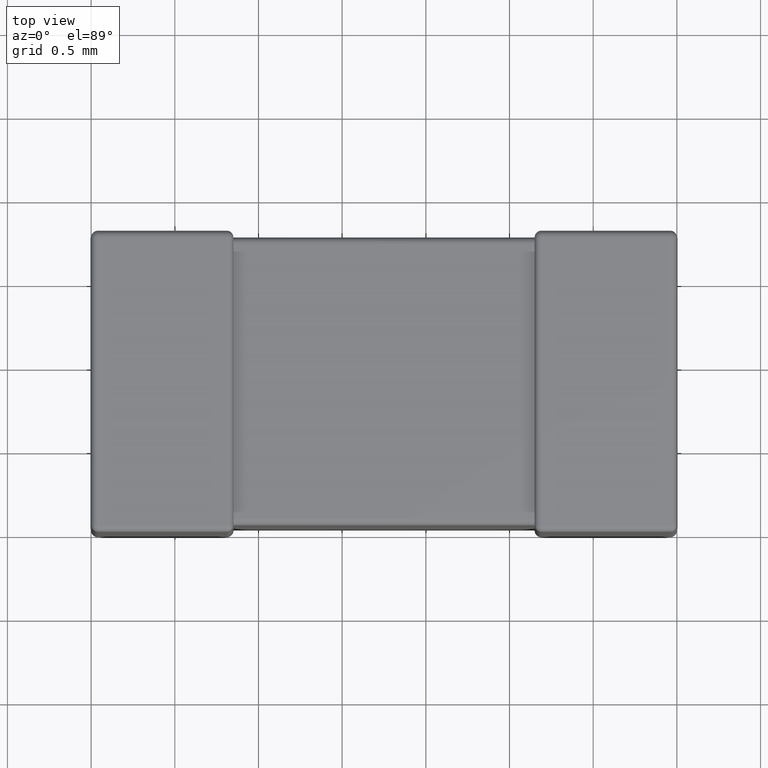
[diagram: clean part render]
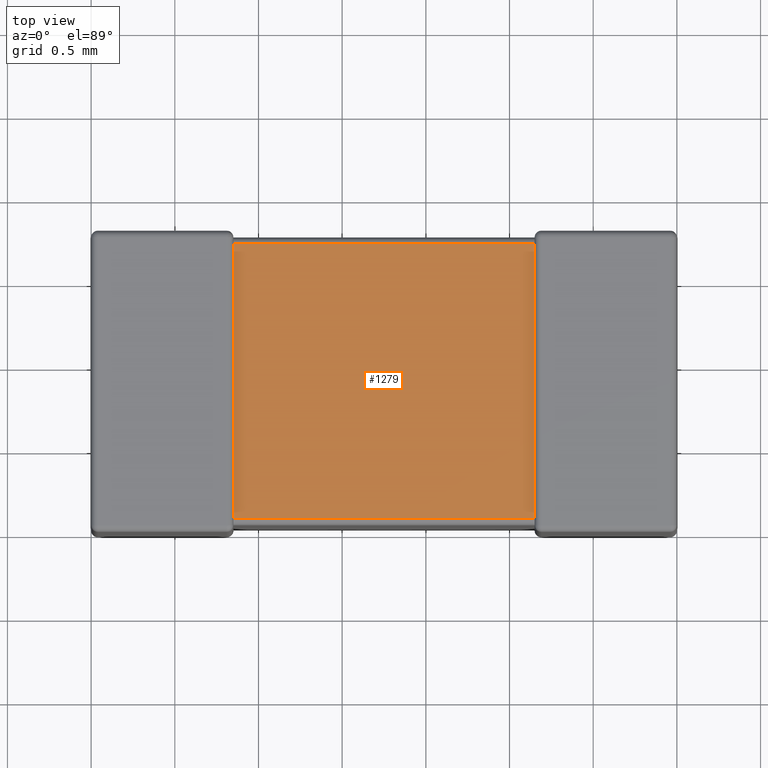
[diagram: same view with one face highlighted and labeled with its STEP entity id]
A machine part, top view. The second image highlights one B-rep face of the part: STEP entity #1279.
In plain terms, the highlighted planar face has unit normal (-0, 0, 1).
Its self-contained STEP definition (entity closure, byte-faithful):
#90 = VECTOR ( 'NONE', #727, 1000.000000000000000 ) ;
#146 = LINE ( 'NONE', #2877, #90 ) ;
#166 = CARTESIAN_POINT ( 'NONE',  ( 2.650000000000000400, 0.07903999999999988800, -0.03951999999999991600 ) ) ;
#243 = DIRECTION ( 'NONE',  ( 1.000000000000000000, 0.0000000000000000000, 0.0000000000000000000 ) ) ;
#299 = CARTESIAN_POINT ( 'NONE',  ( 0.8500000000000000900, 1.720960000000000000, -0.03951999999999991600 ) ) ;
#434 = LINE ( 'NONE', #1998, #3063 ) ;
#609 = EDGE_CURVE ( 'NONE', #4046, #3303, #2062, .T. ) ;
#727 = DIRECTION ( 'NONE',  ( -0.0000000000000000000, 1.000000000000000000, -0.0000000000000000000 ) ) ;
#729 = ORIENTED_EDGE ( 'NONE', *, *, #1587, .T. ) ;
#812 = LINE ( 'NONE', #299, #1145 ) ;
#853 = CARTESIAN_POINT ( 'NONE',  ( 0.8500000000000000900, 1.720959999999999600, -0.03951999999999991600 ) ) ;
#1034 = CARTESIAN_POINT ( 'NONE',  ( 2.650000000000000400, 0.0000000000000000000, -0.03951999999999991600 ) ) ;
#1145 = VECTOR ( 'NONE', #1739, 1000.000000000000000 ) ;
#1148 = PLANE ( 'NONE',  #3209 ) ;
#1279 = ADVANCED_FACE ( 'NONE', ( #1601 ), #1148, .T. ) ;
#1347 = ORIENTED_EDGE ( 'NONE', *, *, #4674, .F. ) ;
#1441 = ORIENTED_EDGE ( 'NONE', *, *, #609, .T. ) ;
#1587 = EDGE_CURVE ( 'NONE', #3303, #2530, #812, .T. ) ;
#1601 = FACE_OUTER_BOUND ( 'NONE', #2811, .T. ) ;
#1739 = DIRECTION ( 'NONE',  ( -1.000000000000000000, 0.0000000000000000000, -0.0000000000000000000 ) ) ;
#1998 = CARTESIAN_POINT ( 'NONE',  ( 0.8500000000000000900, 0.07903999999999991600, -0.03951999999999991600 ) ) ;
#2062 = LINE ( 'NONE', #1034, #3305 ) ;
#2530 = VERTEX_POINT ( 'NONE', #853 ) ;
#2648 = EDGE_CURVE ( 'NONE', #2801, #4046, #434, .T. ) ;
#2801 = VERTEX_POINT ( 'NONE', #3929 ) ;
#2811 = EDGE_LOOP ( 'NONE', ( #1347, #3942, #1441, #729 ) ) ;
#2877 = CARTESIAN_POINT ( 'NONE',  ( 0.8500000000000000900, 0.0000000000000000000, -0.03951999999999991600 ) ) ;
#3063 = VECTOR ( 'NONE', #243, 1000.000000000000000 ) ;
#3209 = AXIS2_PLACEMENT_3D ( 'NONE', #4481, #4159, #4452 ) ;
#3303 = VERTEX_POINT ( 'NONE', #3403 ) ;
#3305 = VECTOR ( 'NONE', #3629, 1000.000000000000000 ) ;
#3403 = CARTESIAN_POINT ( 'NONE',  ( 2.650000000000000400, 1.720959999999999600, -0.03951999999999991600 ) ) ;
#3629 = DIRECTION ( 'NONE',  ( -0.0000000000000000000, 1.000000000000000000, -0.0000000000000000000 ) ) ;
#3929 = CARTESIAN_POINT ( 'NONE',  ( 0.8500000000000000900, 0.07903999999999988800, -0.03951999999999991600 ) ) ;
#3942 = ORIENTED_EDGE ( 'NONE', *, *, #2648, .T. ) ;
#4046 = VERTEX_POINT ( 'NONE', #166 ) ;
#4159 = DIRECTION ( 'NONE',  ( -0.0000000000000000000, 0.0000000000000000000, 1.000000000000000000 ) ) ;
#4452 = DIRECTION ( 'NONE',  ( 1.000000000000000000, 0.0000000000000000000, 0.0000000000000000000 ) ) ;
#4481 = CARTESIAN_POINT ( 'NONE',  ( 0.8500000000000000900, 0.0000000000000000000, -0.03951999999999991600 ) ) ;
#4674 = EDGE_CURVE ( 'NONE', #2801, #2530, #146, .T. ) ;